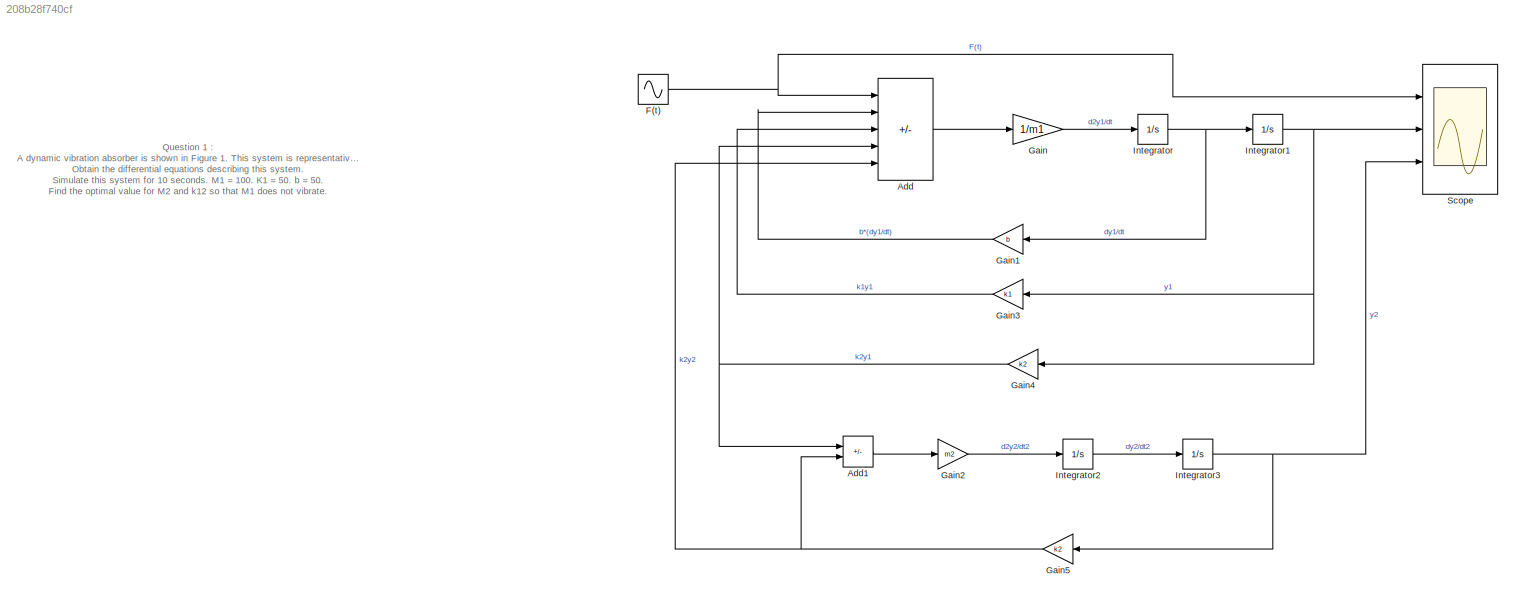
MODEL slx_208b28f740cf
KIND model
CONFIG AbsTol = auto
CONFIG EnableMultiTasking = off
CONFIG FixedStep = auto
CONFIG MaxStep = auto
CONFIG MinStep = auto
CONFIG PreLoadFcn = m1=100;\nk1=50;\nb=50;\nk2=25;\nm2=4;
CONFIG RelTol = 1e-3
CONFIG SampleTimeConstraint = Unconstrained
CONFIG Solver = VariableStepAuto
CONFIG SolverName = VariableStepAuto
CONFIG StartTime = 0.0
CONFIG StopTime = 10.0
BLOCK [Sum] Add
  IconShape = rectangular
  Inputs = +---+
  Ports = [5, 1]
BLOCK [Sum] Add1
  IconShape = rectangular
  Inputs = +-
  Ports = [2, 1]
BLOCK [Sin] F(t)
  Amplitude = 2
  Frequency = 10
  Ports = [0, 1]
  SampleTime = 0
BLOCK [Gain] Gain
  Gain = 1/m1
BLOCK [Gain] Gain1
  Gain = b
  NameLocation = top
BLOCK [Gain] Gain2
  Gain = m2
BLOCK [Gain] Gain3
  Gain = k1
  NameLocation = top
BLOCK [Gain] Gain4
  Gain = k2
  NameLocation = top
BLOCK [Gain] Gain5
  Gain = k2
  NameLocation = top
BLOCK [Integrator] Integrator
  Ports = [1, 1]
BLOCK [Integrator] Integrator1
  Ports = [1, 1]
BLOCK [Integrator] Integrator2
  Ports = [1, 1]
BLOCK [Integrator] Integrator3
  Ports = [1, 1]
BLOCK [Scope] Scope
  Floating = off
  NumInputPorts = 3
  Ports = [3]
  ScopeSpecificationString = Simulink.scopes.TimeScopeBlockCfg('CurrentConfiguration', extmgr.ConfigurationSet(extmgr.Configuration('Core','General UI',true),extmgr.Configuration('Core','Source UI',true),extmgr.Configuration('Sources','WiredSimulink',true),extmgr.Configuration('Visuals','Time Domain',true,'SerializedDisplays',{struct('MinYLimReal','-2.4989','MaxYLimReal','2.49984','YLabelReal','','MinYLimMag','0.00000','MaxYL...<+2685ch>
ANNOTATION (root): Question 1 : A dynamic vibration absorber is shown in Figure 1. This system is representative of many situations involving the vibration of machines containing unbalanced components. The parameters M2 and k12 maybe chosen so that the main mass M1 does not vibrate in the steady state when F(t) = 2 * sin (10 * t) Obtain the differential equations describing this system. Simulate this system for 10 s...<+101ch>
LINE Add1:1 -> Gain2:1
LINE Add:1 -> Gain:1
NET F(t):1 -> Add:1, Scope:1
LINE Gain1:1 -> Add:2
LINE Gain2:1 -> Integrator2:1
LINE Gain3:1 -> Add:3
NET Gain4:1 -> Add1:1, Add:4
NET Gain5:1 -> Add1:2, Add:5
LINE Gain:1 -> Integrator:1
NET Integrator1:1 -> Gain3:1, Gain4:1, Scope:2
LINE Integrator2:1 -> Integrator3:1
NET Integrator3:1 -> Gain5:1, Scope:3
NET Integrator:1 -> Gain1:1, Integrator1:1
note: NET lines group one-source signal fan-out (src -> all destinations, sorted); 1:1 wires keep LINE
